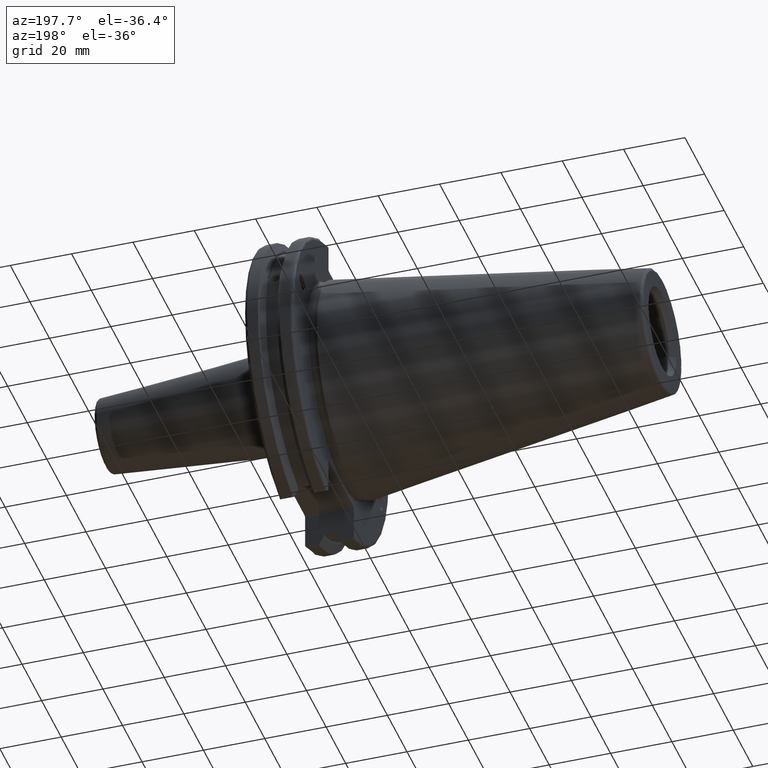
[diagram: clean part render]
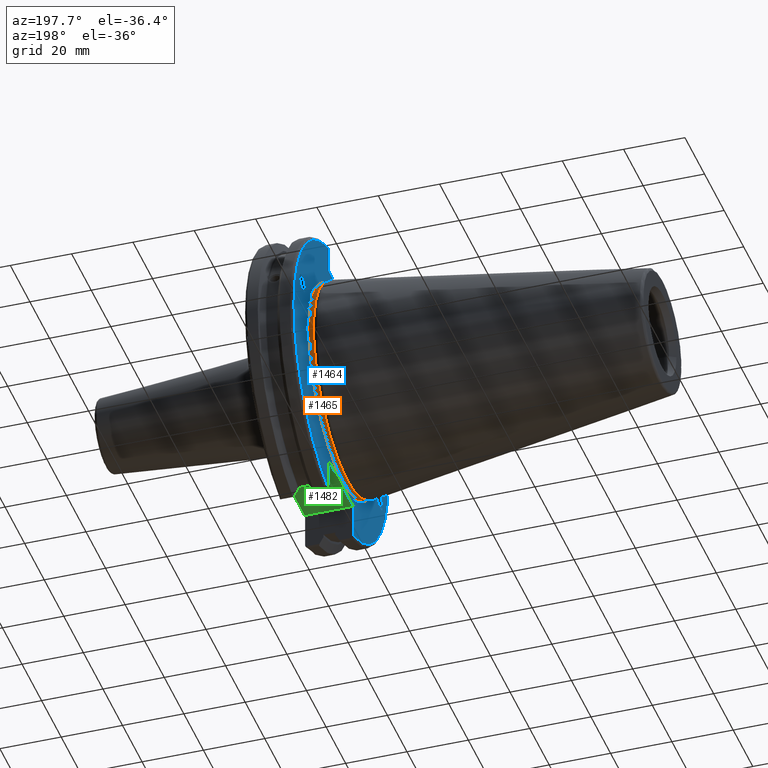
[diagram: same view with three faces highlighted in distinct colors, each labeled with its STEP entity id]
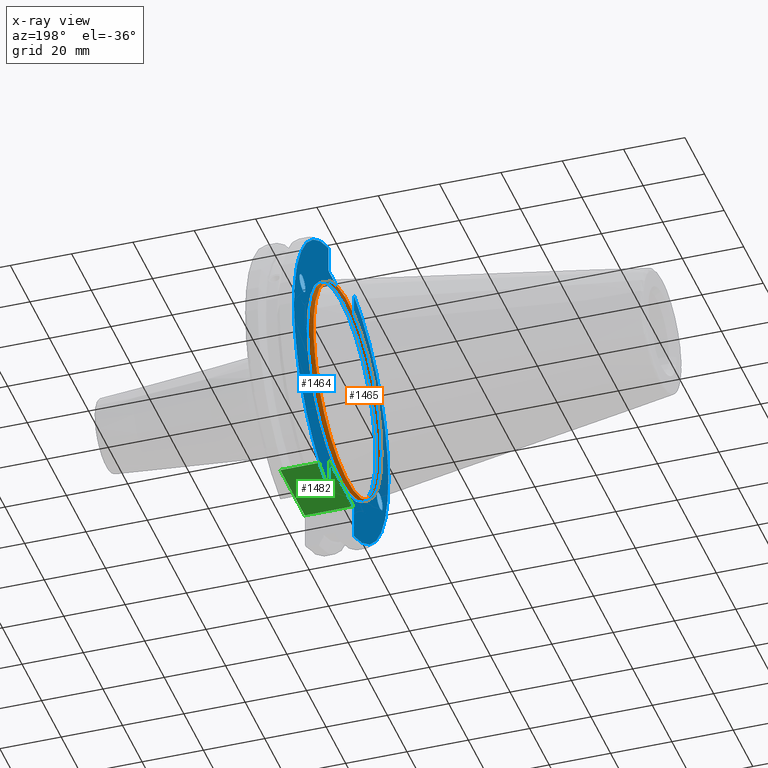
[diagram: x-ray of the same camera — body ghosted, the three highlighted faces saturated]
A machine part, auxiliary view with three faces highlighted in distinct colors.
The next image is the same camera in x-ray (body ghosted, the three faces saturated) — at least one of them is partly hidden behind the body in this view.
Their STEP definitions:

[orange] entity #1465 — the highlighted cylindrical surface (bore or boss wall) has radius 34.625 mm, axis along (1, 0, 0).
#136=LINE('',#2750,#226);
#226=VECTOR('',#1935,34.625);
#280=CYLINDRICAL_SURFACE('',#1625,34.625);
#386=FACE_OUTER_BOUND('',#487,.T.);
#487=EDGE_LOOP('',(#1192,#1193,#1194,#1195,#1196));
#579=CIRCLE('',#1618,34.625);
#582=CIRCLE('',#1621,34.625);
#585=CIRCLE('',#1626,34.625);
#700=VERTEX_POINT('',#2716);
#701=VERTEX_POINT('',#2717);
#715=VERTEX_POINT('',#2749);
#876=EDGE_CURVE('',#700,#701,#579,.T.);
#879=EDGE_CURVE('',#701,#700,#582,.T.);
#892=EDGE_CURVE('',#700,#715,#136,.T.);
#893=EDGE_CURVE('',#715,#715,#585,.T.);
#1192=ORIENTED_EDGE('',*,*,#876,.F.);
#1193=ORIENTED_EDGE('',*,*,#892,.T.);
#1194=ORIENTED_EDGE('',*,*,#893,.T.);
#1195=ORIENTED_EDGE('',*,*,#892,.F.);
#1196=ORIENTED_EDGE('',*,*,#879,.F.);
#1465=ADVANCED_FACE('',(#386),#280,.T.);
#1618=AXIS2_PLACEMENT_3D('',#2718,#1909,#1910);
#1621=AXIS2_PLACEMENT_3D('',#2722,#1915,#1916);
#1625=AXIS2_PLACEMENT_3D('',#2748,#1933,#1934);
#1626=AXIS2_PLACEMENT_3D('',#2751,#1936,#1937);
#1909=DIRECTION('center_axis',(1.,0.,0.));
#1910=DIRECTION('ref_axis',(0.,-1.,1.83697019872103E-16));
#1915=DIRECTION('center_axis',(1.,0.,0.));
#1916=DIRECTION('ref_axis',(0.,-1.,1.83697019872103E-16));
#1933=DIRECTION('center_axis',(1.,0.,0.));
#1934=DIRECTION('ref_axis',(0.,1.,0.));
#1935=DIRECTION('',(-1.,0.,0.));
#1936=DIRECTION('center_axis',(1.,0.,0.));
#1937=DIRECTION('ref_axis',(0.,0.,-1.));
#2716=CARTESIAN_POINT('',(2.675,-34.625,-4.24033954204771E-15));
#2717=CARTESIAN_POINT('',(2.675,-4.24033954204771E-15,34.625));
#2718=CARTESIAN_POINT('Origin',(2.675,0.,0.));
#2722=CARTESIAN_POINT('Origin',(2.675,0.,0.));
#2748=CARTESIAN_POINT('Origin',(2.14730762113532,0.,0.));
#2749=CARTESIAN_POINT('',(1.11961524227064,-34.625,-4.24033954204771E-15));
#2750=CARTESIAN_POINT('',(2.14730762113532,-34.625,-4.24033954204771E-15));
#2751=CARTESIAN_POINT('Origin',(1.11961524227064,0.,0.));

[blue] entity #1464 — the highlighted planar face has unit normal (-1, 0, 0).
#31=ELLIPSE('',#1582,3.05193647190364,2.5);
#32=ELLIPSE('',#1616,3.05193647190364,2.5);
#126=LINE('',#2728,#216);
#127=LINE('',#2730,#217);
#128=LINE('',#2732,#218);
#129=LINE('',#2734,#219);
#130=LINE('',#2736,#220);
#131=LINE('',#2740,#221);
#132=LINE('',#2742,#222);
#133=LINE('',#2744,#223);
#134=LINE('',#2746,#224);
#135=LINE('',#2747,#225);
#216=VECTOR('',#1921,10.);
#217=VECTOR('',#1922,10.);
#218=VECTOR('',#1923,10.);
#219=VECTOR('',#1924,10.);
#220=VECTOR('',#1925,10.);
#221=VECTOR('',#1928,10.);
#222=VECTOR('',#1929,10.);
#223=VECTOR('',#1930,10.);
#224=VECTOR('',#1931,10.);
#225=VECTOR('',#1932,10.);
#303=FACE_BOUND('',#484,.T.);
#304=FACE_BOUND('',#485,.T.);
#305=FACE_BOUND('',#486,.T.);
#321=PLANE('',#1622);
#385=FACE_OUTER_BOUND('',#483,.T.);
#483=EDGE_LOOP('',(#1177,#1178,#1179,#1180,#1181,#1182,#1183,#1184,#1185,
#1186,#1187,#1188));
#484=EDGE_LOOP('',(#1189));
#485=EDGE_LOOP('',(#1190));
#486=EDGE_LOOP('',(#1191));
#581=CIRCLE('',#1620,35.125);
#583=CIRCLE('',#1623,48.2125);
#584=CIRCLE('',#1624,48.2125);
#661=VERTEX_POINT('',#2453);
#699=VERTEX_POINT('',#2712);
#702=VERTEX_POINT('',#2719);
#703=VERTEX_POINT('',#2724);
#704=VERTEX_POINT('',#2725);
#705=VERTEX_POINT('',#2727);
#706=VERTEX_POINT('',#2729);
#707=VERTEX_POINT('',#2731);
#708=VERTEX_POINT('',#2733);
#709=VERTEX_POINT('',#2735);
#710=VERTEX_POINT('',#2737);
#711=VERTEX_POINT('',#2739);
#712=VERTEX_POINT('',#2741);
#713=VERTEX_POINT('',#2743);
#714=VERTEX_POINT('',#2745);
#824=EDGE_CURVE('',#661,#661,#31,.T.);
#875=EDGE_CURVE('',#699,#699,#32,.T.);
#878=EDGE_CURVE('',#702,#702,#581,.T.);
#880=EDGE_CURVE('',#703,#704,#583,.T.);
#881=EDGE_CURVE('',#703,#705,#126,.T.);
#882=EDGE_CURVE('',#706,#705,#127,.T.);
#883=EDGE_CURVE('',#706,#707,#128,.T.);
#884=EDGE_CURVE('',#708,#707,#129,.T.);
#885=EDGE_CURVE('',#708,#709,#130,.T.);
#886=EDGE_CURVE('',#710,#709,#584,.T.);
#887=EDGE_CURVE('',#710,#711,#131,.T.);
#888=EDGE_CURVE('',#712,#711,#132,.T.);
#889=EDGE_CURVE('',#712,#713,#133,.T.);
#890=EDGE_CURVE('',#714,#713,#134,.T.);
#891=EDGE_CURVE('',#714,#704,#135,.T.);
#1177=ORIENTED_EDGE('',*,*,#880,.F.);
#1178=ORIENTED_EDGE('',*,*,#881,.T.);
#1179=ORIENTED_EDGE('',*,*,#882,.F.);
#1180=ORIENTED_EDGE('',*,*,#883,.T.);
#1181=ORIENTED_EDGE('',*,*,#884,.F.);
#1182=ORIENTED_EDGE('',*,*,#885,.T.);
#1183=ORIENTED_EDGE('',*,*,#886,.F.);
#1184=ORIENTED_EDGE('',*,*,#887,.T.);
#1185=ORIENTED_EDGE('',*,*,#888,.F.);
#1186=ORIENTED_EDGE('',*,*,#889,.T.);
#1187=ORIENTED_EDGE('',*,*,#890,.F.);
#1188=ORIENTED_EDGE('',*,*,#891,.T.);
#1189=ORIENTED_EDGE('',*,*,#824,.T.);
#1190=ORIENTED_EDGE('',*,*,#875,.T.);
#1191=ORIENTED_EDGE('',*,*,#878,.F.);
#1464=ADVANCED_FACE('',(#385,#303,#304,#305),#321,.T.);
#1582=AXIS2_PLACEMENT_3D('',#2455,#1821,#1822);
#1616=AXIS2_PLACEMENT_3D('',#2714,#1905,#1906);
#1620=AXIS2_PLACEMENT_3D('',#2721,#1913,#1914);
#1622=AXIS2_PLACEMENT_3D('',#2723,#1917,#1918);
#1623=AXIS2_PLACEMENT_3D('',#2726,#1919,#1920);
#1624=AXIS2_PLACEMENT_3D('',#2738,#1926,#1927);
#1821=DIRECTION('center_axis',(1.,0.,0.));
#1822=DIRECTION('ref_axis',(0.,-0.939692620785908,-0.342020143325668));
#1905=DIRECTION('center_axis',(1.,0.,0.));
#1906=DIRECTION('ref_axis',(0.,0.939692620785908,0.342020143325669));
#1913=DIRECTION('center_axis',(-1.,0.,0.));
#1914=DIRECTION('ref_axis',(0.,-1.,1.83697019872103E-16));
#1917=DIRECTION('center_axis',(-1.,0.,0.));
#1918=DIRECTION('ref_axis',(0.,0.,1.));
#1919=DIRECTION('center_axis',(1.,0.,0.));
#1920=DIRECTION('ref_axis',(0.,-1.,1.60812264967664E-16));
#1921=DIRECTION('',(0.,0.,-1.));
#1922=DIRECTION('',(0.,-0.707106781186549,0.707106781186546));
#1923=DIRECTION('',(0.,1.,0.));
#1924=DIRECTION('',(0.,-0.707106781186549,-0.707106781186546));
#1925=DIRECTION('',(0.,0.,1.));
#1926=DIRECTION('center_axis',(1.,0.,0.));
#1927=DIRECTION('ref_axis',(0.,1.,-6.12323399573677E-17));
#1928=DIRECTION('',(0.,0.,1.));
#1929=DIRECTION('',(0.,0.707106781186549,-0.707106781186546));
#1930=DIRECTION('',(0.,-1.,0.));
#1931=DIRECTION('',(0.,0.707106781186549,0.707106781186546));
#1932=DIRECTION('',(0.,0.,-1.));
#2453=CARTESIAN_POINT('',(3.175,-36.5992078912529,-13.3210222701368));
#2455=CARTESIAN_POINT('Origin',(3.175,-39.4670900730082,-14.3648460196781));
#2712=CARTESIAN_POINT('',(3.175,36.5992078912529,13.3210222701368));
#2714=CARTESIAN_POINT('Origin',(3.175,39.4670900730082,14.3648460196781));
#2719=CARTESIAN_POINT('',(3.175,-4.30157188200508E-15,35.125));
#2721=CARTESIAN_POINT('Origin',(3.175,0.,0.));
#2723=CARTESIAN_POINT('Origin',(3.175,49.2125,0.));
#2724=CARTESIAN_POINT('',(3.175,-12.95,46.4407434937254));
#2725=CARTESIAN_POINT('',(3.175,-12.95,-46.4407434937254));
#2726=CARTESIAN_POINT('Origin',(3.175,0.,0.));
#2727=CARTESIAN_POINT('',(3.175,-12.95,38.219));
#2728=CARTESIAN_POINT('',(3.175,-12.95,18.8595));
#2729=CARTESIAN_POINT('',(3.175,-12.45,37.719));
#2730=CARTESIAN_POINT('',(3.175,12.2703750000001,12.998625));
#2731=CARTESIAN_POINT('',(3.175,12.45,37.719));
#2732=CARTESIAN_POINT('',(3.175,24.60625,37.719));
#2733=CARTESIAN_POINT('',(3.175,12.95,38.219));
#2734=CARTESIAN_POINT('',(3.175,12.335875,37.604875));
#2735=CARTESIAN_POINT('',(3.175,12.95,46.4407434937254));
#2736=CARTESIAN_POINT('',(3.175,12.95,18.8595));
#2737=CARTESIAN_POINT('',(3.175,12.95,-46.4407434937254));
#2738=CARTESIAN_POINT('Origin',(3.175,0.,0.));
#2739=CARTESIAN_POINT('',(3.175,12.95,-35.806));
#2740=CARTESIAN_POINT('',(3.175,12.95,-17.653));
#2741=CARTESIAN_POINT('',(3.175,12.45,-35.306));
#2742=CARTESIAN_POINT('',(3.175,12.939125,-35.795125));
#2743=CARTESIAN_POINT('',(3.175,-12.45,-35.306));
#2744=CARTESIAN_POINT('',(3.175,24.60625,-35.306));
#2745=CARTESIAN_POINT('',(3.175,-12.95,-35.806));
#2746=CARTESIAN_POINT('',(3.175,11.6671250000001,-11.188875));
#2747=CARTESIAN_POINT('',(3.175,-12.95,-17.653));

[green] entity #1482 — the highlighted planar face has unit normal (0, 0, 1).
#93=LINE('',#2161,#183);
#133=LINE('',#2744,#223);
#154=LINE('',#2956,#244);
#155=LINE('',#2958,#245);
#183=VECTOR('',#1752,10.);
#223=VECTOR('',#1930,10.);
#244=VECTOR('',#2009,10.);
#245=VECTOR('',#2012,10.);
#331=PLANE('',#1654);
#403=FACE_OUTER_BOUND('',#505,.T.);
#505=EDGE_LOOP('',(#1293,#1294,#1295,#1296));
#628=VERTEX_POINT('',#2158);
#629=VERTEX_POINT('',#2160);
#712=VERTEX_POINT('',#2741);
#713=VERTEX_POINT('',#2743);
#782=EDGE_CURVE('',#628,#629,#93,.T.);
#889=EDGE_CURVE('',#712,#713,#133,.T.);
#944=EDGE_CURVE('',#629,#712,#154,.T.);
#945=EDGE_CURVE('',#713,#628,#155,.T.);
#1293=ORIENTED_EDGE('',*,*,#944,.F.);
#1294=ORIENTED_EDGE('',*,*,#782,.F.);
#1295=ORIENTED_EDGE('',*,*,#945,.F.);
#1296=ORIENTED_EDGE('',*,*,#889,.F.);
#1482=ADVANCED_FACE('',(#403),#331,.F.);
#1654=AXIS2_PLACEMENT_3D('',#2957,#2010,#2011);
#1752=DIRECTION('',(0.,1.,0.));
#1930=DIRECTION('',(0.,-1.,0.));
#2009=DIRECTION('',(-1.,2.63163976207444E-16,0.));
#2010=DIRECTION('center_axis',(0.,0.,1.));
#2011=DIRECTION('ref_axis',(1.,0.,0.));
#2012=DIRECTION('',(1.,2.63163976207445E-16,0.));
#2158=CARTESIAN_POINT('',(19.05,-12.45,-35.306));
#2160=CARTESIAN_POINT('',(19.05,12.45,-35.306));
#2161=CARTESIAN_POINT('',(19.05,-3.33066907387547E-15,-35.306));
#2741=CARTESIAN_POINT('',(3.175,12.45,-35.306));
#2743=CARTESIAN_POINT('',(3.175,-12.45,-35.306));
#2744=CARTESIAN_POINT('',(3.175,24.60625,-35.306));
#2956=CARTESIAN_POINT('',(10.63125,12.45,-35.306));
#2957=CARTESIAN_POINT('Origin',(18.0875,-6.66133814775094E-15,-35.306));
#2958=CARTESIAN_POINT('',(19.06875,-12.45,-35.306));